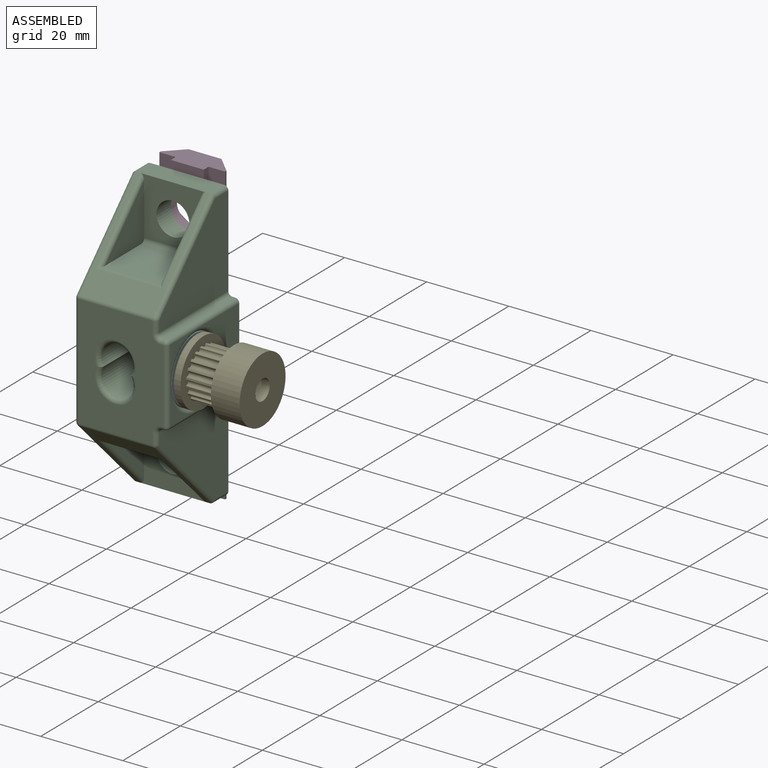
[diagram: assembled view]
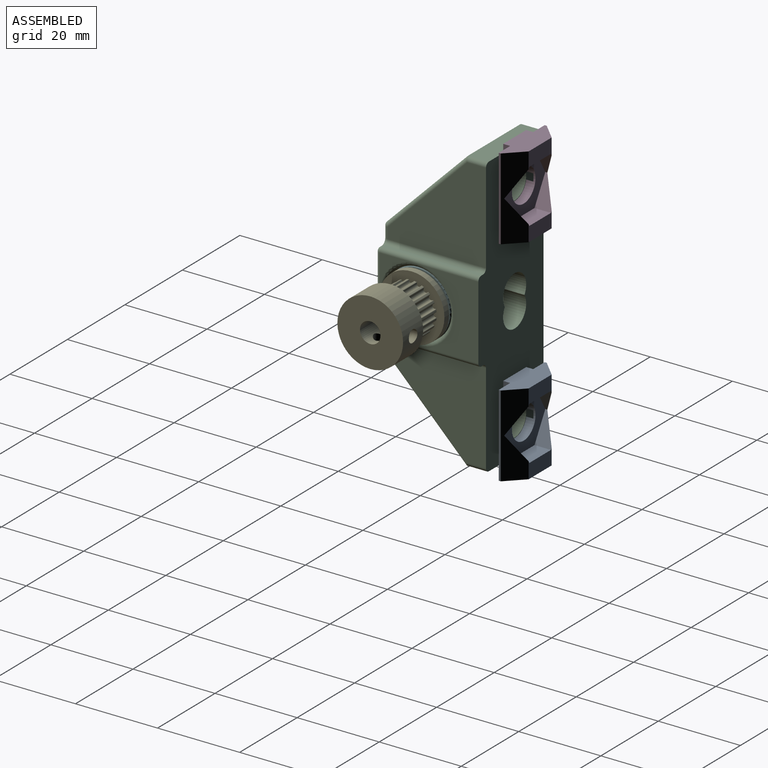
[diagram: assembled view, second angle]
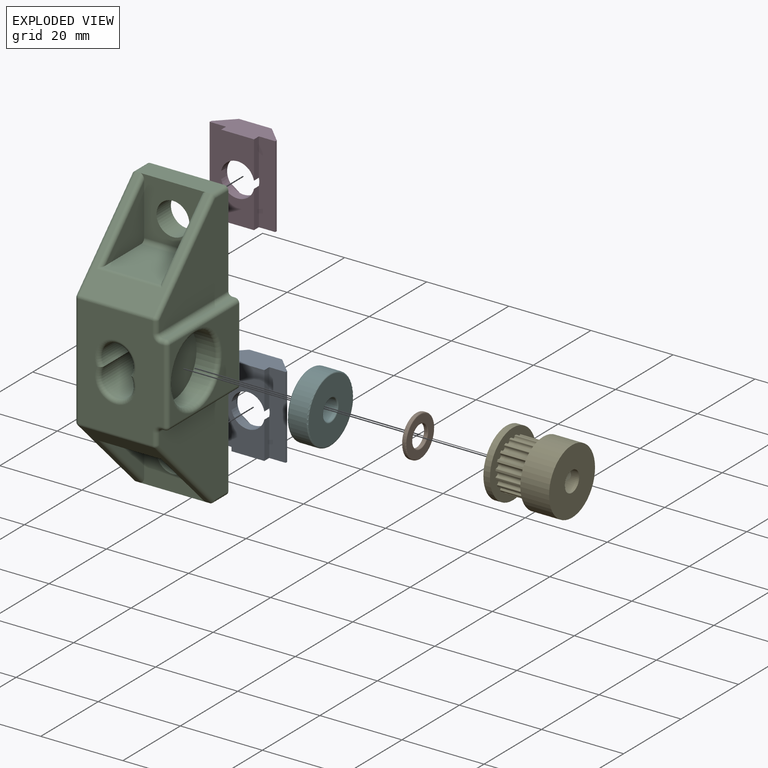
[diagram: exploded view]
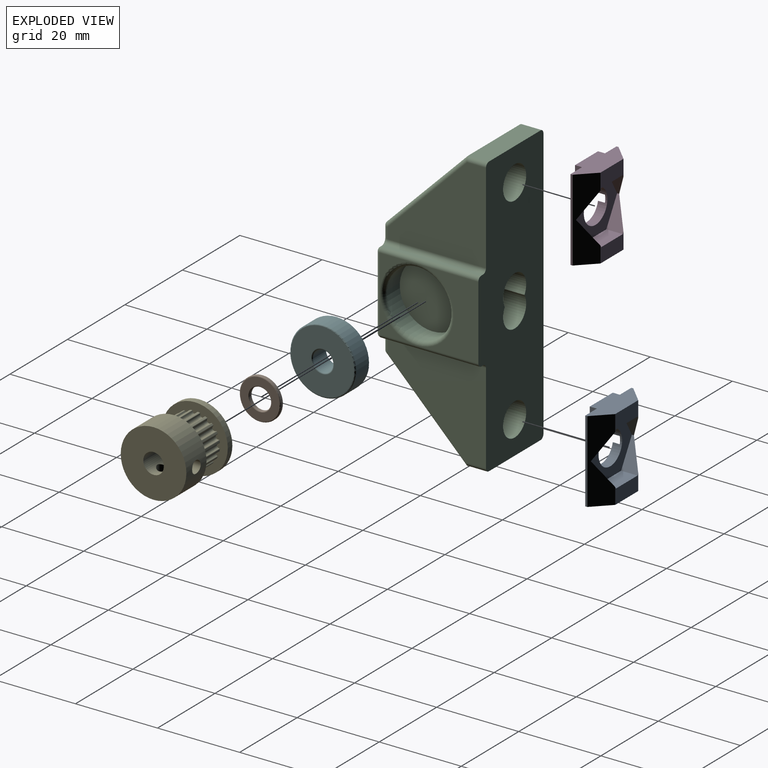
[diagram: exploded view, second angle]
ASSEMBLY  parts=6 mates=5
PART A: 24 faces, bbox 16x20x6.2 mm
  f0: plane 20x0.5mm, normal (-1,0,0), area 10mm2, adj f2,f3,f17,f23
  f1: plane 20x0.5mm, normal (1,0,0), area 10mm2, adj f2,f3,f20,f22
  f2: plane 16x6.2mm, normal (0,1,0), area 69.6mm2, adj f0,f1,f7,f10,f16,f17,f19,f20
  f3: plane 16x6.2mm, normal (0,-1,0), area 69.6mm2, adj f0,f1,f6,f9,f17,f18,f20,f21
  f4: plane 6.5x4mm, normal (-0.87,-0.5,0), area 17.7mm2, adj f5,f7,f14,f15,f22
  f5: plane 6.5x4mm, normal (-0.87,0.5,0), area 17.7mm2, adj f4,f6,f11,f15,f22
  f6: plane 8x3.93mm, normal (0,0,-1), area 28.1mm2, adj f3,f5,f11,f12,f22,f23
  f7: plane 8x3.93mm, normal (0,0,-1), area 28.1mm2, adj f2,f4,f13,f14,f22,f23
  f8: cylinder r=4.1mm len=8.2mm, axis (0,0,-1), area 50.5mm2, adj f9,f10,f15,f16,f17,f18,f19,f20
  f9: plane 9.1x8mm, normal (0,0,1), area 53.7mm2, adj f3,f8,f18,f21
  f10: plane 9.1x8mm, normal (0,0,1), area 53.7mm2, adj f2,f8,f16,f19
  f11: plane 7.51x4mm, normal (0,1,0), area 30mm2, adj f5,f6,f12,f15
  f12: plane 6.5x4mm, normal (0.87,0.5,0), area 17.7mm2, adj f6,f11,f13,f15,f23
  f13: plane 6.5x4mm, normal (0.87,-0.5,0), area 17.7mm2, adj f7,f12,f14,f15,f23
  f14: plane 7.51x4mm, normal (0,-1,0), area 30mm2, adj f4,f7,f13,f15
  f15: plane 15.01x13mm, normal (0,0,-1), area 93.5mm2, adj f4,f5,f8,f11,f12,f13,f14
  f16: plane 9.1x1.7mm, normal (-1,0,0), area 15.5mm2, adj f2,f8,f10,f17
  f17: plane 20x4mm, normal (0,0,1), area 79.9mm2, adj f0,f2,f3,f8,f16,f18
  f18: plane 9.1x1.7mm, normal (-1,0,0), area 15.5mm2, adj f3,f8,f9,f17
  f19: plane 9.1x1.7mm, normal (1,0,0), area 15.5mm2, adj f2,f8,f10,f20
  f20: plane 20x4mm, normal (0,0,1), area 79.9mm2, adj f1,f2,f3,f8,f19,f21
  f21: plane 9.1x1.7mm, normal (1,0,0), area 15.5mm2, adj f3,f8,f9,f20
  f22: plane 20x4mm, normal (0.71,0,-0.71), area 83mm2, adj f1,f2,f3,f4,f5,f6,f7
  f23: plane 20x4mm, normal (-0.71,0,-0.71), area 83mm2, adj f0,f2,f3,f6,f7,f12,f13
PART B: 8 faces, bbox 10.8x10.8x1 mm
  f0: cylinder r=2.65mm len=5.3mm, axis (0,0,-1), area 10mm2, adj f4,f6
  f1: cylinder r=5mm len=10mm, axis (0,0,-1), area 18.8mm2, adj f5,f7
  f2: plane 9.6x9.6mm, normal (0,0,1), area 46.9mm2, adj f6,f7
  f3: plane 9.6x9.6mm, normal (0,0,-1), area 46.9mm2, adj f4,f5
  f4: torus R=2.85mm, axis (0,0,1), area 5.4mm2, adj f0,f3
  f5: torus R=4.8mm, axis (0,0,1), area 9.7mm2, adj f1,f3
  f6: torus R=2.85mm, axis (0,0,1), area 5.4mm2, adj f0,f2
  f7: torus R=4.8mm, axis (0,0,1), area 9.7mm2, adj f1,f2
PART C: 66 faces, bbox 22.7x25.5x68.2 mm
  f0: plane 9x9mm, normal (1,0,0), area 17.4mm2, adj f34,f42,f62
  f1: plane 9x9mm, normal (1,0,0), area 17.4mm2, adj f41,f42,f62
  f2: cylinder r=4mm len=8mm, axis (0,-1,0), area 125.7mm2, adj f15,f16
  f3: cylinder r=4mm len=8mm, axis (0,-1,0), area 125.7mm2, adj f15,f20
  f4: plane 27.37x20.65mm, normal (0,-1,0), area 422.8mm2, adj f32,f35,f36,f42,f43,f49,f50,f52
  f5: cylinder r=4mm len=24mm, axis (0,-1,0), area 407.7mm2, adj f14,f15,f64
  f6: plane 24x0.65mm, normal (0,0,1), area 15.6mm2, adj f15,f41,f48,f49
  f7: plane 24x22.1mm, normal (1,0,0), area 341.9mm2, adj f15,f48,f54,f56,f58
  f8: plane 18x5mm, normal (0,0,1), area 90mm2, adj f15,f20,f27,f47,f56
  f9: plane 66.2x24mm, normal (-1,0,0), area 1211.9mm2, adj f15,f40,f44,f47,f50,f51
  f10: plane 18x5mm, normal (0,0,-1), area 90mm2, adj f15,f16,f26,f33,f40
  f11: plane 24x22.1mm, normal (1,0,0), area 341.9mm2, adj f15,f31,f33,f36,f37
  f12: plane 24x0.65mm, normal (0,0,-1), area 15.6mm2, adj f15,f31,f34,f35
  f13: plane 18x15mm, normal (1,0,0), area 142.8mm2, adj f15,f34,f41,f62
  f14: cylinder r=4mm len=24mm, axis (0,-1,0), area 407.7mm2, adj f5,f15,f65
  f15: plane 68.2x22.65mm, normal (0,1,0), area 1233.4mm2, adj f2,f3,f5,f6,f7,f8,f9,f10
  f16: plane 16x15mm, normal (0,-1,0), area 160.3mm2, adj f2,f10,f17,f18,f19,f59,f61
  f17: plane 14.59x14.59mm, normal (0,0,-1), area 204.4mm2, adj f16,f18,f19,f59,f60,f61
  f18: plane 13.59x13.59mm, normal (-1,0,0), area 92.3mm2, adj f16,f17,f59
  f19: plane 13.59x13.59mm, normal (1,0,0), area 92.3mm2, adj f16,f17,f61
  f20: plane 16x14mm, normal (0,-1,0), area 146.3mm2, adj f3,f8,f21,f23,f28,f30,f63
  f21: plane 13.59x13.59mm, normal (-1,0,0), area 92.1mm2, adj f20,f22,f30,f63
  f22: plane 14.59x13.59mm, normal (0,0,1), area 190.4mm2, adj f21,f23,f28,f29,f30,f63
  f23: plane 13.59x13.59mm, normal (1,0,0), area 92.1mm2, adj f20,f22,f28,f63
  f24: cylinder r=8mm len=16mm, axis (1,0,0), area 226.2mm2, adj f25,f62
  f25: plane 16x16mm, normal (1,0,0), area 201.1mm2, adj f24
  f26: plane 19.71x19.71mm, normal (0,-0.71,-0.71), area 155.6mm2, adj f10,f37,f43,f44,f59,f60,f61
  f27: plane 19.71x19.71mm, normal (0,-0.71,0.71), area 155.6mm2, adj f8,f28,f29,f30,f51,f55,f58
  f28: cylinder r=1mm len=16mm, axis (0,0.71,0.71), area 32.3mm2, adj f20,f22,f23,f27,f29
  f29: cylinder r=1mm len=16mm, axis (-1,0,0), area 12mm2, adj f22,f27,f28,f30
  f30: cylinder r=1mm len=16mm, axis (0,0.71,0.71), area 32.3mm2, adj f20,f21,f22,f27,f29
  f31: cylinder r=1mm len=24mm, axis (0,-1,0), area 37.7mm2, adj f11,f12,f15,f32
  f32: torus R=2mm, axis (0,-1,0), area 3.4mm2, adj f4,f31,f35,f36
  f33: cylinder r=1mm len=5mm, axis (0,-1,0), area 7.6mm2, adj f10,f11,f15,f37
  f34: cylinder r=1mm len=24mm, axis (0,-1,0), area 37.7mm2, adj f0,f12,f13,f15,f38
  f35: cylinder r=1mm len=1mm, axis (1,0,0), area 1mm2, adj f4,f12,f32,f38
  f36: cylinder r=1mm len=2.69mm, axis (0,0,1), area 4.2mm2, adj f4,f11,f32,f39
  f37: cylinder r=1mm len=20.41mm, axis (0,-0.71,0.71), area 43.5mm2, adj f11,f26,f33,f39
  f38: sphere r=1mm, area 1.6mm2, adj f34,f35,f42
  f39: sphere r=1mm, area 0.8mm2, adj f36,f37,f43
  f40: cylinder r=1mm len=5mm, axis (0,1,0), area 7.6mm2, adj f9,f10,f15,f44
  f41: cylinder r=1mm len=24mm, axis (0,1,0), area 37.7mm2, adj f1,f6,f13,f15,f45
  f42: cylinder r=1mm len=18mm, axis (0,0,1), area 28.3mm2, adj f0,f1,f4,f38,f45
  f43: cylinder r=1mm len=18mm, axis (-1,0,0), area 14.1mm2, adj f4,f26,f39,f46
  f44: cylinder r=1mm len=20.41mm, axis (0,-0.71,0.71), area 43.5mm2, adj f9,f26,f40,f46
  f45: sphere r=1mm, area 1.6mm2, adj f41,f42,f49
  f46: sphere r=1mm, area 0.8mm2, adj f43,f44,f50
  f47: cylinder r=1mm len=5mm, axis (0,-1,0), area 7.6mm2, adj f8,f9,f15,f51
  f48: cylinder r=1mm len=24mm, axis (0,1,0), area 37.7mm2, adj f6,f7,f15,f52
  f49: cylinder r=1mm len=1mm, axis (-1,0,0), area 1mm2, adj f4,f6,f45,f52
  f50: cylinder r=1mm len=27.37mm, axis (0,0,-1), area 43mm2, adj f4,f9,f46,f53
  f51: cylinder r=1mm len=20.41mm, axis (0,-0.71,-0.71), area 43.5mm2, adj f9,f27,f47,f53
  f52: torus R=2mm, axis (0,-1,0), area 3.4mm2, adj f4,f48,f49,f54
  f53: sphere r=1mm, area 0.8mm2, adj f50,f51,f55
  f54: cylinder r=1mm len=2.69mm, axis (0,0,1), area 4.2mm2, adj f4,f7,f52,f57
  f55: cylinder r=1mm len=18mm, axis (-1,0,0), area 14.1mm2, adj f4,f27,f53,f57
  f56: cylinder r=1mm len=5mm, axis (0,1,0), area 7.6mm2, adj f7,f8,f15,f58
  f57: sphere r=1mm, area 0.8mm2, adj f54,f55,f58
  f58: cylinder r=1mm len=20.41mm, axis (0,-0.71,-0.71), area 43.5mm2, adj f7,f27,f56,f57
  f59: cylinder r=1mm len=16mm, axis (0,-0.71,0.71), area 32.3mm2, adj f16,f17,f18,f26,f60
  f60: cylinder r=1mm len=16mm, axis (1,0,0), area 12mm2, adj f17,f26,f59,f61
  f61: cylinder r=1mm len=16mm, axis (0,-0.71,0.71), area 32.3mm2, adj f16,f17,f19,f26,f60
  f62: torus R=9mm, axis (-1,0,0), area 82.5mm2, adj f0,f1,f13,f24
  f63: cylinder r=1mm len=14mm, axis (-1,0,0), area 22mm2, adj f20,f21,f22,f23
  f64: torus R=5mm, axis (0,-1,0), area 28.4mm2, adj f4,f5,f65
  f65: torus R=5mm, axis (0,-1,0), area 28.4mm2, adj f4,f14,f64
PART D: same geometry as A
PART E: 129 faces, bbox 16x16x16 mm
  f0: cylinder r=0.56mm len=7.4mm, axis (-1,0,0), area 9.6mm2, adj f1,f119,f120,f123
  f1: cylinder r=1mm len=7.4mm, axis (-1,0,0), area 1.9mm2, adj f0,f2,f120,f123
  f2: cylinder r=0.15mm len=7.4mm, axis (-1,0,0), area 1.7mm2, adj f1,f3,f120,f123
  f3: cylinder r=6.12mm len=7.4mm, axis (-1,0,0), area 3.1mm2, adj f2,f4,f120,f123
  f4: cylinder r=0.15mm len=7.4mm, axis (-1,0,0), area 1.7mm2, adj f3,f5,f120,f123
  f5: cylinder r=1mm len=7.4mm, axis (-1,0,0), area 1.9mm2, adj f4,f6,f120,f123
  f6: cylinder r=0.56mm len=7.4mm, axis (-1,0,0), area 9.6mm2, adj f5,f7,f120,f123
  f7: cylinder r=1mm len=7.4mm, axis (-1,0,0), area 1.9mm2, adj f6,f8,f120,f123
  f8: cylinder r=0.15mm len=7.4mm, axis (-1,0,0), area 1.7mm2, adj f7,f9,f120,f123
  f9: cylinder r=6.12mm len=7.4mm, axis (-1,0,0), area 3.1mm2, adj f8,f10,f120,f123
  f10: cylinder r=0.15mm len=7.4mm, axis (-1,0,0), area 1.7mm2, adj f9,f11,f120,f123
  f11: cylinder r=1mm len=7.4mm, axis (-1,0,0), area 1.9mm2, adj f10,f12,f120,f123
  f12: cylinder r=0.56mm len=7.4mm, axis (-1,0,0), area 9.6mm2, adj f11,f13,f120,f123
  f13: cylinder r=1mm len=7.4mm, axis (-1,0,0), area 1.9mm2, adj f12,f14,f120,f123
  f14: cylinder r=0.15mm len=7.4mm, axis (-1,0,0), area 1.7mm2, adj f13,f15,f120,f123
  f15: cylinder r=6.12mm len=7.4mm, axis (-1,0,0), area 3.1mm2, adj f14,f16,f120,f123
  f16: cylinder r=0.15mm len=7.4mm, axis (-1,0,0), area 1.7mm2, adj f15,f17,f120,f123
  f17: cylinder r=1mm len=7.4mm, axis (-1,0,0), area 1.9mm2, adj f16,f18,f120,f123
  f18: cylinder r=0.56mm len=7.4mm, axis (-1,0,0), area 9.6mm2, adj f17,f19,f120,f123
  f19: cylinder r=1mm len=7.4mm, axis (-1,0,0), area 1.9mm2, adj f18,f20,f120,f123
  f20: cylinder r=0.15mm len=7.4mm, axis (-1,0,0), area 1.7mm2, adj f19,f21,f120,f123
  f21: cylinder r=6.12mm len=7.4mm, axis (-1,0,0), area 3.1mm2, adj f20,f22,f120,f123
  f22: cylinder r=0.15mm len=7.4mm, axis (-1,0,0), area 1.7mm2, adj f21,f23,f120,f123
  f23: cylinder r=1mm len=7.4mm, axis (-1,0,0), area 1.9mm2, adj f22,f24,f120,f123
  f24: cylinder r=0.56mm len=7.4mm, axis (-1,0,0), area 9.6mm2, adj f23,f25,f120,f123
  f25: cylinder r=1mm len=7.4mm, axis (-1,0,0), area 1.9mm2, adj f24,f26,f120,f123
  f26: cylinder r=0.15mm len=7.4mm, axis (-1,0,0), area 1.7mm2, adj f25,f27,f120,f123
  f27: cylinder r=6.12mm len=7.4mm, axis (-1,0,0), area 3.1mm2, adj f26,f28,f120,f123
  f28: cylinder r=0.15mm len=7.4mm, axis (-1,0,0), area 1.7mm2, adj f27,f29,f120,f123
  f29: cylinder r=1mm len=7.4mm, axis (-1,0,0), area 1.9mm2, adj f28,f30,f120,f123
  f30: cylinder r=0.56mm len=7.4mm, axis (-1,0,0), area 9.6mm2, adj f29,f31,f120,f123
  f31: cylinder r=1mm len=7.4mm, axis (-1,0,0), area 1.9mm2, adj f30,f32,f120,f123
  f32: cylinder r=0.15mm len=7.4mm, axis (-1,0,0), area 1.7mm2, adj f31,f33,f120,f123
  f33: cylinder r=6.12mm len=7.4mm, axis (-1,0,0), area 3.1mm2, adj f32,f34,f120,f123
  f34: cylinder r=0.15mm len=7.4mm, axis (-1,0,0), area 1.7mm2, adj f33,f35,f120,f123
  f35: cylinder r=1mm len=7.4mm, axis (-1,0,0), area 1.9mm2, adj f34,f36,f120,f123
  f36: cylinder r=0.56mm len=7.4mm, axis (-1,0,0), area 9.6mm2, adj f35,f37,f120,f123
  f37: cylinder r=1mm len=7.4mm, axis (-1,0,0), area 1.9mm2, adj f36,f38,f120,f123
  f38: cylinder r=0.15mm len=7.4mm, axis (-1,0,0), area 1.7mm2, adj f37,f39,f120,f123
  f39: cylinder r=6.12mm len=7.4mm, axis (-1,0,0), area 3.1mm2, adj f38,f40,f120,f123
  f40: cylinder r=0.15mm len=7.4mm, axis (-1,0,0), area 1.7mm2, adj f39,f41,f120,f123
  f41: cylinder r=1mm len=7.4mm, axis (-1,0,0), area 1.9mm2, adj f40,f42,f120,f123
  f42: cylinder r=0.56mm len=7.4mm, axis (-1,0,0), area 9.6mm2, adj f41,f43,f120,f123
  f43: cylinder r=1mm len=7.4mm, axis (-1,0,0), area 1.9mm2, adj f42,f44,f120,f123
  f44: cylinder r=0.15mm len=7.4mm, axis (-1,0,0), area 1.7mm2, adj f43,f45,f120,f123
  f45: cylinder r=6.12mm len=7.4mm, axis (-1,0,0), area 3.1mm2, adj f44,f46,f120,f123
  f46: cylinder r=0.15mm len=7.4mm, axis (-1,0,0), area 1.7mm2, adj f45,f47,f120,f123
  f47: cylinder r=1mm len=7.4mm, axis (-1,0,0), area 1.9mm2, adj f46,f48,f120,f123
  f48: cylinder r=0.56mm len=7.4mm, axis (-1,0,0), area 9.6mm2, adj f47,f49,f120,f123
  f49: cylinder r=1mm len=7.4mm, axis (-1,0,0), area 1.9mm2, adj f48,f50,f120,f123
  f50: cylinder r=0.15mm len=7.4mm, axis (-1,0,0), area 1.7mm2, adj f49,f51,f120,f123
  f51: cylinder r=6.12mm len=7.4mm, axis (-1,0,0), area 3.1mm2, adj f50,f52,f120,f123
  f52: cylinder r=0.15mm len=7.4mm, axis (-1,0,0), area 1.7mm2, adj f51,f53,f120,f123
  f53: cylinder r=1mm len=7.4mm, axis (-1,0,0), area 1.9mm2, adj f52,f54,f120,f123
  f54: cylinder r=0.56mm len=7.4mm, axis (-1,0,0), area 9.6mm2, adj f53,f55,f120,f123
  f55: cylinder r=1mm len=7.4mm, axis (-1,0,0), area 1.9mm2, adj f54,f56,f120,f123
  f56: cylinder r=0.15mm len=7.4mm, axis (-1,0,0), area 1.7mm2, adj f55,f57,f120,f123
  f57: cylinder r=6.12mm len=7.4mm, axis (-1,0,0), area 3.1mm2, adj f56,f58,f120,f123
  f58: cylinder r=0.15mm len=7.4mm, axis (-1,0,0), area 1.7mm2, adj f57,f59,f120,f123
  f59: cylinder r=1mm len=7.4mm, axis (-1,0,0), area 1.9mm2, adj f58,f60,f120,f123
  f60: cylinder r=0.56mm len=7.4mm, axis (-1,0,0), area 9.6mm2, adj f59,f61,f120,f123
  f61: cylinder r=1mm len=7.4mm, axis (-1,0,0), area 1.9mm2, adj f60,f62,f120,f123
  f62: cylinder r=0.15mm len=7.4mm, axis (-1,0,0), area 1.7mm2, adj f61,f63,f120,f123
  f63: cylinder r=6.12mm len=7.4mm, axis (-1,0,0), area 3.1mm2, adj f62,f64,f120,f123
  f64: cylinder r=0.15mm len=7.4mm, axis (-1,0,0), area 1.7mm2, adj f63,f65,f120,f123
  f65: cylinder r=1mm len=7.4mm, axis (-1,0,0), area 1.9mm2, adj f64,f66,f120,f123
  f66: cylinder r=0.56mm len=7.4mm, axis (-1,0,0), area 9.6mm2, adj f65,f67,f120,f123
  f67: cylinder r=1mm len=7.4mm, axis (-1,0,0), area 1.9mm2, adj f66,f68,f120,f123
  f68: cylinder r=0.15mm len=7.4mm, axis (-1,0,0), area 1.7mm2, adj f67,f69,f120,f123
  f69: cylinder r=6.12mm len=7.4mm, axis (-1,0,0), area 3.1mm2, adj f68,f70,f120,f123
  f70: cylinder r=0.15mm len=7.4mm, axis (-1,0,0), area 1.7mm2, adj f69,f71,f120,f123
  f71: cylinder r=1mm len=7.4mm, axis (-1,0,0), area 1.9mm2, adj f70,f72,f120,f123
  f72: cylinder r=0.56mm len=7.4mm, axis (-1,0,0), area 9.6mm2, adj f71,f73,f120,f123
  f73: cylinder r=1mm len=7.4mm, axis (-1,0,0), area 1.9mm2, adj f72,f74,f120,f123
  f74: cylinder r=0.15mm len=7.4mm, axis (-1,0,0), area 1.7mm2, adj f73,f75,f120,f123
  f75: cylinder r=6.12mm len=7.4mm, axis (-1,0,0), area 3.1mm2, adj f74,f76,f120,f123
  f76: cylinder r=0.15mm len=7.4mm, axis (-1,0,0), area 1.7mm2, adj f75,f77,f120,f123
  f77: cylinder r=1mm len=7.4mm, axis (-1,0,0), area 1.9mm2, adj f76,f78,f120,f123
  f78: cylinder r=0.56mm len=7.4mm, axis (-1,0,0), area 9.6mm2, adj f77,f79,f120,f123
  f79: cylinder r=1mm len=7.4mm, axis (-1,0,0), area 1.9mm2, adj f78,f80,f120,f123
  f80: cylinder r=0.15mm len=7.4mm, axis (-1,0,0), area 1.7mm2, adj f79,f81,f120,f123
  f81: cylinder r=6.12mm len=7.4mm, axis (-1,0,0), area 3.1mm2, adj f80,f82,f120,f123
  f82: cylinder r=0.15mm len=7.4mm, axis (-1,0,0), area 1.7mm2, adj f81,f83,f120,f123
  f83: cylinder r=1mm len=7.4mm, axis (-1,0,0), area 1.9mm2, adj f82,f84,f120,f123
  f84: cylinder r=0.56mm len=7.4mm, axis (-1,0,0), area 9.6mm2, adj f83,f85,f120,f123
  f85: cylinder r=1mm len=7.4mm, axis (-1,0,0), area 1.9mm2, adj f84,f86,f120,f123
  f86: cylinder r=0.15mm len=7.4mm, axis (-1,0,0), area 1.7mm2, adj f85,f87,f120,f123
  f87: cylinder r=6.12mm len=7.4mm, axis (-1,0,0), area 3.1mm2, adj f86,f88,f120,f123
  f88: cylinder r=0.15mm len=7.4mm, axis (-1,0,0), area 1.7mm2, adj f87,f89,f120,f123
  f89: cylinder r=1mm len=7.4mm, axis (-1,0,0), area 1.9mm2, adj f88,f90,f120,f123
  f90: cylinder r=0.56mm len=7.4mm, axis (-1,0,0), area 9.6mm2, adj f89,f91,f120,f123
  f91: cylinder r=1mm len=7.4mm, axis (-1,0,0), area 1.9mm2, adj f90,f92,f120,f123
  f92: cylinder r=0.15mm len=7.4mm, axis (-1,0,0), area 1.7mm2, adj f91,f93,f120,f123
  f93: cylinder r=6.12mm len=7.4mm, axis (-1,0,0), area 3.1mm2, adj f92,f94,f120,f123
  f94: cylinder r=0.15mm len=7.4mm, axis (-1,0,0), area 1.7mm2, adj f93,f95,f120,f123
  f95: cylinder r=1mm len=7.4mm, axis (-1,0,0), area 1.9mm2, adj f94,f96,f120,f123
  f96: cylinder r=0.56mm len=7.4mm, axis (-1,0,0), area 9.6mm2, adj f95,f97,f120,f123
  f97: cylinder r=1mm len=7.4mm, axis (-1,0,0), area 1.9mm2, adj f96,f98,f120,f123
  f98: cylinder r=0.15mm len=7.4mm, axis (-1,0,0), area 1.7mm2, adj f97,f99,f120,f123
  f99: cylinder r=6.12mm len=7.4mm, axis (-1,0,0), area 3.1mm2, adj f98,f100,f120,f123
  f100: cylinder r=0.15mm len=7.4mm, axis (-1,0,0), area 1.7mm2, adj f99,f101,f120,f123
  f101: cylinder r=1mm len=7.4mm, axis (-1,0,0), area 1.9mm2, adj f100,f102,f120,f123
  f102: cylinder r=0.56mm len=7.4mm, axis (-1,0,0), area 9.6mm2, adj f101,f103,f120,f123
  f103: cylinder r=1mm len=7.4mm, axis (-1,0,0), area 1.9mm2, adj f102,f104,f120,f123
  f104: cylinder r=0.15mm len=7.4mm, axis (-1,0,0), area 1.7mm2, adj f103,f105,f120,f123
  f105: cylinder r=6.12mm len=7.4mm, axis (-1,0,0), area 3.1mm2, adj f104,f106,f120,f123
  f106: cylinder r=0.15mm len=7.4mm, axis (-1,0,0), area 1.7mm2, adj f105,f107,f120,f123
  f107: cylinder r=1mm len=7.4mm, axis (-1,0,0), area 1.9mm2, adj f106,f108,f120,f123
  f108: cylinder r=0.56mm len=7.4mm, axis (-1,0,0), area 9.6mm2, adj f107,f109,f120,f123
  f109: cylinder r=1mm len=7.4mm, axis (-1,0,0), area 1.9mm2, adj f108,f110,f120,f123
  f110: cylinder r=0.15mm len=7.4mm, axis (-1,0,0), area 1.7mm2, adj f109,f111,f120,f123
  f111: cylinder r=6.12mm len=7.4mm, axis (-1,0,0), area 3.1mm2, adj f110,f112,f120,f123
  f112: cylinder r=0.15mm len=7.4mm, axis (-1,0,0), area 1.7mm2, adj f111,f113,f120,f123
  f113: cylinder r=1mm len=7.4mm, axis (-1,0,0), area 1.9mm2, adj f112,f114,f120,f123
  f114: cylinder r=0.56mm len=7.4mm, axis (-1,0,0), area 9.6mm2, adj f113,f115,f120,f123
  f115: cylinder r=1mm len=7.4mm, axis (-1,0,0), area 1.9mm2, adj f114,f116,f120,f123
  f116: cylinder r=0.15mm len=7.4mm, axis (-1,0,0), area 1.7mm2, adj f115,f117,f120,f123
  f117: cylinder r=6.12mm len=7.4mm, axis (-1,0,0), area 3.1mm2, adj f116,f118,f120,f123
  f118: cylinder r=0.15mm len=7.4mm, axis (-1,0,0), area 1.7mm2, adj f117,f119,f120,f123
  f119: cylinder r=1mm len=7.4mm, axis (-1,0,0), area 1.9mm2, adj f0,f118,f120,f123
  f120: plane 16x16mm, normal (1,0,0), area 97.9mm2, adj f0,f1,f2,f3,f4,f5,f6,f7
  f121: cylinder r=8mm len=16mm, axis (1,0,0), area 80.4mm2, adj f120,f122
  f122: plane 16x16mm, normal (-1,0,0), area 181.4mm2, adj f121,f124
  f123: plane 16x16mm, normal (-1,0,0), area 97.9mm2, adj f0,f1,f2,f3,f4,f5,f6,f7
  f124: cylinder r=2.5mm len=16mm, axis (-1,0,0), area 236.4mm2, adj f122,f126,f127,f128
  f125: cylinder r=8mm len=16mm, axis (-1,0,0), area 337.7mm2, adj f123,f126,f127,f128
  f126: plane 16x16mm, normal (1,0,0), area 181.4mm2, adj f124,f125
  f127: cylinder r=1.5mm len=6mm, axis (0,-1,0), area 53.5mm2, adj f124,f125
  f128: cylinder r=1.5mm len=6mm, axis (0,0,1), area 53.5mm2, adj f124,f125
PART F: 8 faces, bbox 17.3x17.3x5 mm
  f0: cylinder r=2.5mm len=5mm, axis (0,0,-1), area 69.1mm2, adj f4,f6
  f1: cylinder r=8mm len=16mm, axis (0,0,-1), area 221.2mm2, adj f5,f7
  f2: plane 15.4x15.4mm, normal (0,0,1), area 161.6mm2, adj f6,f7
  f3: plane 15.4x15.4mm, normal (0,0,-1), area 161.6mm2, adj f4,f5
  f4: torus R=2.8mm, axis (0,0,1), area 7.7mm2, adj f0,f3
  f5: torus R=7.7mm, axis (0,0,1), area 23.4mm2, adj f1,f3
  f6: torus R=2.8mm, axis (0,0,1), area 7.7mm2, adj f0,f2
  f7: torus R=7.7mm, axis (0,0,1), area 23.4mm2, adj f1,f2
PLACE A rot(axis=(1,0,0),90deg) t=(-20.41,50.92,2.87)mm
PLACE B rot(axis=(-0.71,0,0.71),180deg) t=(-7.56,33.72,28.97)mm
PLACE C t=(-20.41,23.72,26.87)mm
PLACE D rot(axis=(1,0,0),90deg) t=(-20.41,50.92,55.07)mm
PLACE E t=(-5.96,33.72,28.97)mm
PLACE F rot(axis=(0,-1,0),90deg) t=(-8.26,33.72,28.97)mm
MATE fastened C.f2 <-> A.f8  axis (0,1,0) through (-20.41,48.72,2.87)mm
MATE fastened C.f24 <-> F.f1  axis (1,0,0) through (-13.26,33.72,28.97)mm
MATE fastened B.f1 <-> E.f121  axis (1,0,0) through (-7.56,33.72,28.97)mm
MATE fastened C.f3 <-> D.f8  axis (0,1,0) through (-20.41,48.72,55.07)mm
MATE fastened B.f0 <-> F.f0  axis (-1,0,0) through (-8.56,33.72,28.97)mm
